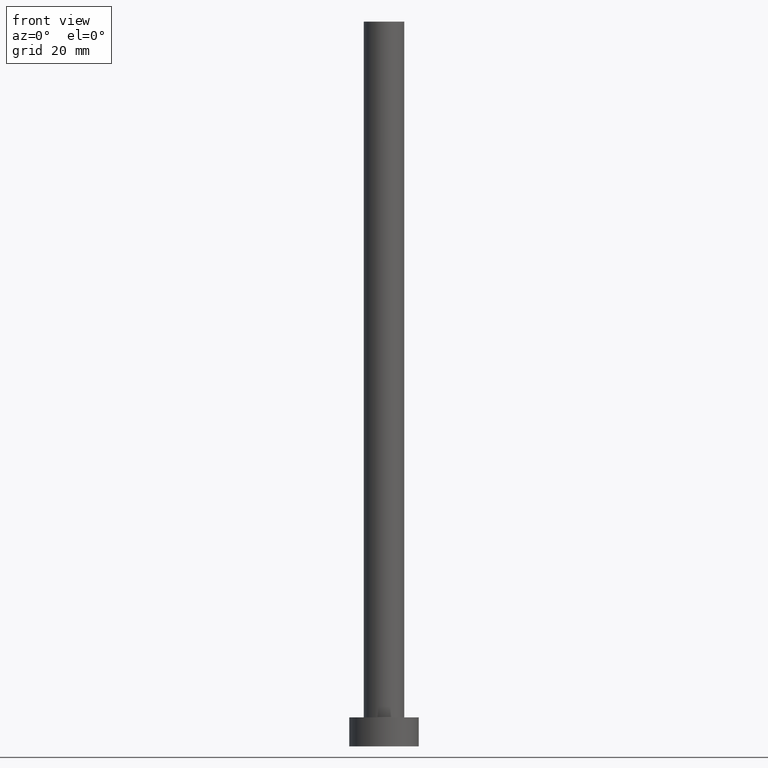
[diagram: clean part render]
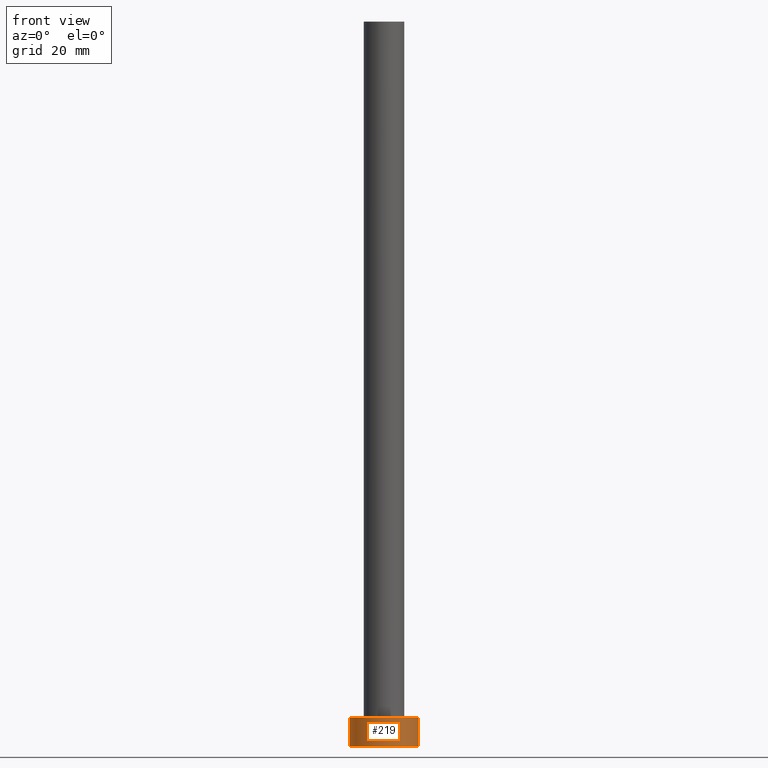
[diagram: same view with one face highlighted and labeled with its STEP entity id]
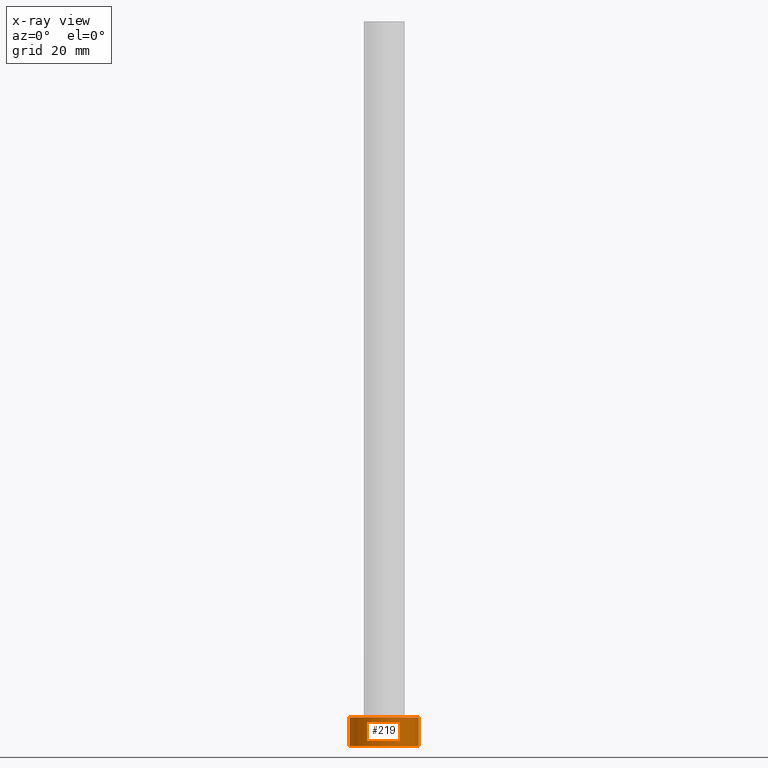
[diagram: x-ray of the same camera — body ghosted, the highlighted face saturated]
A machine part, front view. The second image highlights one B-rep face of the part: STEP entity #219.
The next image is the same camera in x-ray: the body ghosted, the highlighted face saturated — about 0% of this face is hidden behind the body in this view.
In plain terms, the highlighted cylindrical surface (edge-blend (fillet) strip) has radius 6 mm, axis along (-0, -0, -1).
Its self-contained STEP definition (entity closure, byte-faithful):
#5 = AXIS2_PLACEMENT_3D ( 'NONE', #191, #19, #210 ) ;
#6 = EDGE_LOOP ( 'NONE', ( #76, #201, #235, #87 ) ) ;
#9 = EDGE_CURVE ( 'NONE', #204, #182, #140, .T. ) ;
#19 = DIRECTION ( 'NONE',  ( -0.000000000000000000, -0.000000000000000000, -1.000000000000000000 ) ) ;
#37 = CARTESIAN_POINT ( 'NONE',  ( 6.000000000000000888, 7.347880794884120722E-16, 0.000000000000000000 ) ) ;
#38 = DIRECTION ( 'NONE',  ( -0.000000000000000000, -0.000000000000000000, -1.000000000000000000 ) ) ;
#46 = AXIS2_PLACEMENT_3D ( 'NONE', #170, #151, #129 ) ;
#58 = DIRECTION ( 'NONE',  ( -0.000000000000000000, -0.000000000000000000, -1.000000000000000000 ) ) ;
#60 = CYLINDRICAL_SURFACE ( 'NONE', #5, 6.000000000000000888 ) ;
#76 = ORIENTED_EDGE ( 'NONE', *, *, #101, .F. ) ;
#87 = ORIENTED_EDGE ( 'NONE', *, *, #9, .T. ) ;
#101 = EDGE_CURVE ( 'NONE', #155, #182, #227, .T. ) ;
#106 = CIRCLE ( 'NONE', #130, 6.000000000000000888 ) ;
#115 = LINE ( 'NONE', #141, #221 ) ;
#116 = CARTESIAN_POINT ( 'NONE',  ( -6.000000000000000888, 0.000000000000000000, 5.000000000000000000 ) ) ;
#129 = DIRECTION ( 'NONE',  ( 1.000000000000000000, 0.000000000000000000, 0.000000000000000000 ) ) ;
#130 = AXIS2_PLACEMENT_3D ( 'NONE', #248, #250, #174 ) ;
#137 = EDGE_CURVE ( 'NONE', #213, #204, #115, .T. ) ;
#140 = CIRCLE ( 'NONE', #46, 6.000000000000000888 ) ;
#141 = CARTESIAN_POINT ( 'NONE',  ( -6.000000000000000888, 0.000000000000000000, 5.000000000000000000 ) ) ;
#151 = DIRECTION ( 'NONE',  ( 0.000000000000000000, 0.000000000000000000, 1.000000000000000000 ) ) ;
#155 = VERTEX_POINT ( 'NONE', #228 ) ;
#162 = VECTOR ( 'NONE', #38, 1000.000000000000000 ) ;
#170 = CARTESIAN_POINT ( 'NONE',  ( 0.000000000000000000, 0.000000000000000000, 0.000000000000000000 ) ) ;
#174 = DIRECTION ( 'NONE',  ( 1.000000000000000000, 0.000000000000000000, 0.000000000000000000 ) ) ;
#182 = VERTEX_POINT ( 'NONE', #37 ) ;
#190 = CARTESIAN_POINT ( 'NONE',  ( 6.000000000000000888, 7.347880794884120722E-16, 5.000000000000000000 ) ) ;
#191 = CARTESIAN_POINT ( 'NONE',  ( 0.000000000000000000, 0.000000000000000000, 5.000000000000000000 ) ) ;
#193 = FACE_OUTER_BOUND ( 'NONE', #6, .T. ) ;
#201 = ORIENTED_EDGE ( 'NONE', *, *, #232, .F. ) ;
#204 = VERTEX_POINT ( 'NONE', #230 ) ;
#210 = DIRECTION ( 'NONE',  ( -1.000000000000000000, 0.000000000000000000, 0.000000000000000000 ) ) ;
#213 = VERTEX_POINT ( 'NONE', #116 ) ;
#219 = ADVANCED_FACE ( 'NONE', ( #193 ), #60, .T. ) ;
#221 = VECTOR ( 'NONE', #58, 1000.000000000000000 ) ;
#227 = LINE ( 'NONE', #190, #162 ) ;
#228 = CARTESIAN_POINT ( 'NONE',  ( 6.000000000000000888, 7.347880794884120722E-16, 5.000000000000000000 ) ) ;
#230 = CARTESIAN_POINT ( 'NONE',  ( -6.000000000000000888, 0.000000000000000000, 0.000000000000000000 ) ) ;
#232 = EDGE_CURVE ( 'NONE', #213, #155, #106, .T. ) ;
#235 = ORIENTED_EDGE ( 'NONE', *, *, #137, .T. ) ;
#248 = CARTESIAN_POINT ( 'NONE',  ( 0.000000000000000000, 0.000000000000000000, 5.000000000000000000 ) ) ;
#250 = DIRECTION ( 'NONE',  ( 0.000000000000000000, 0.000000000000000000, 1.000000000000000000 ) ) ;